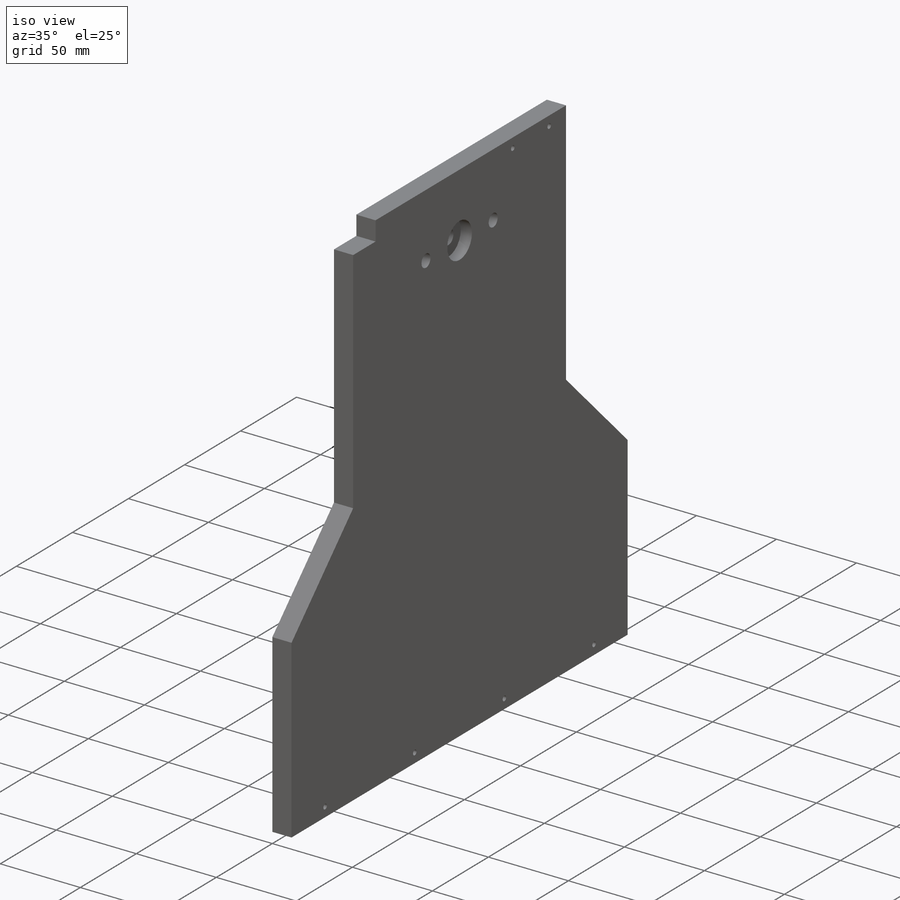
[diagram: iso view]
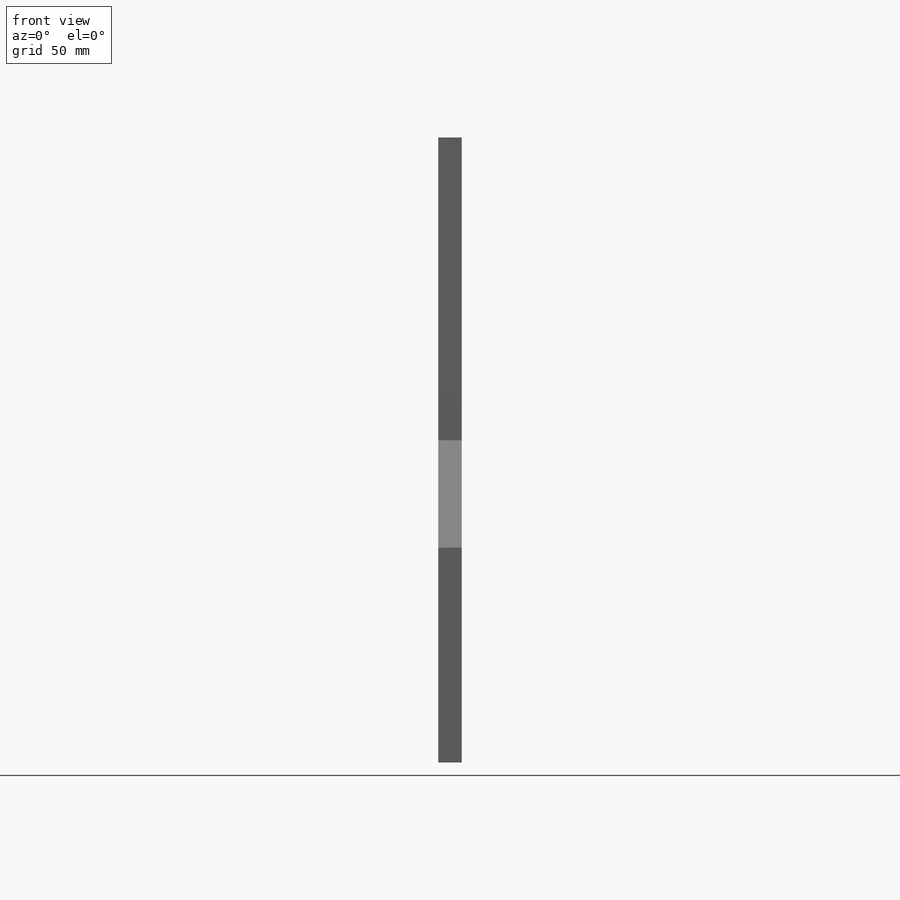
[diagram: front view]
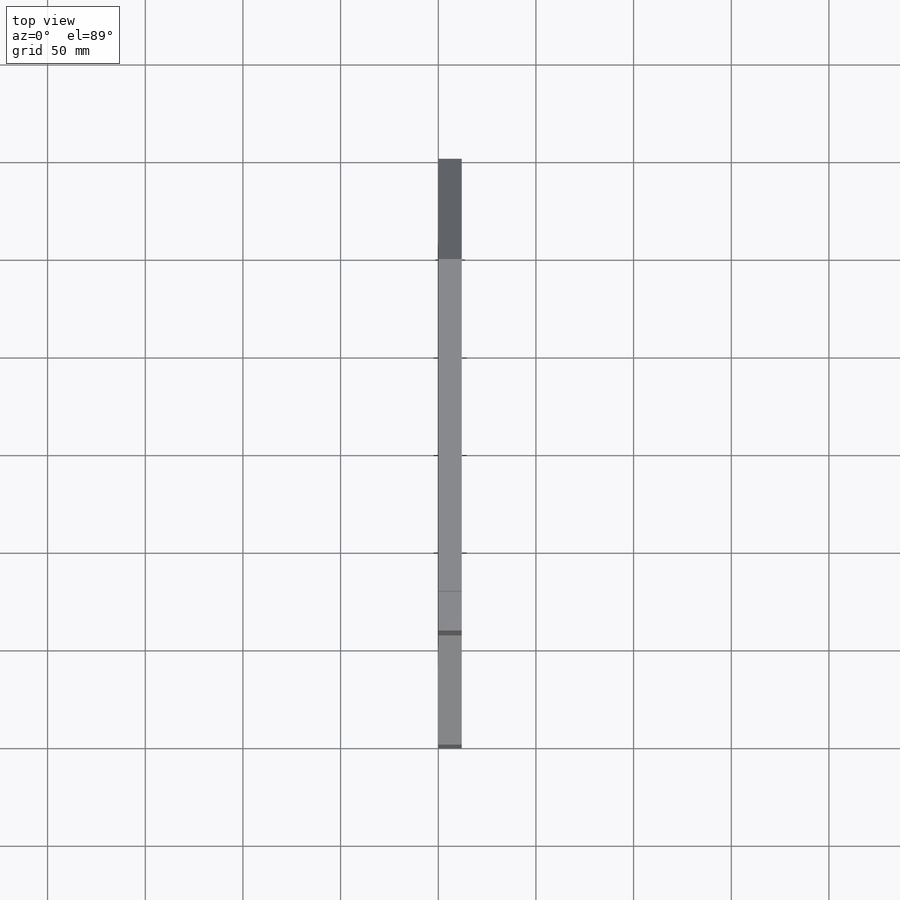
[diagram: top view]
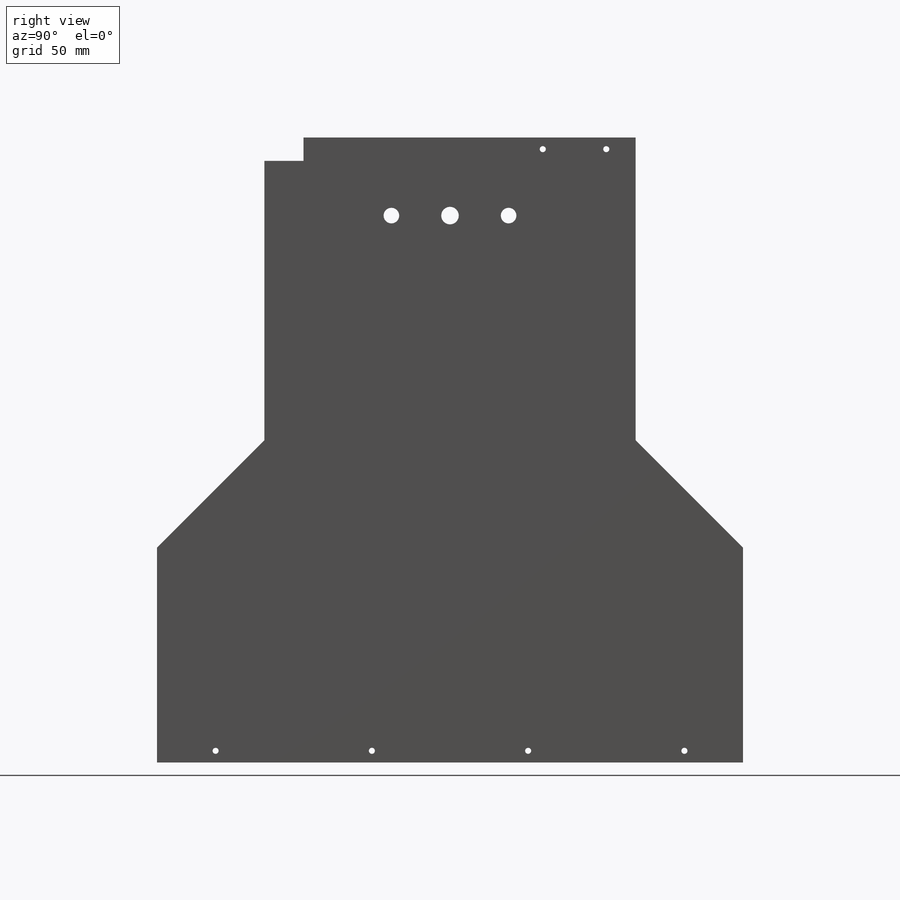
[diagram: right view]
SOLIDWORKS PART (.sldprt)
format: sldprt  version: not decoded by parser v0  size: 225,280 bytes
history: native  units: mm
features: sketch x6, cut_extrude x5, material x1, extrude x1 (+13 scaffold rows collapsed)
feature tree (26):
  scaffold x13  (default folders/planes/origin — collapsed)
  material  "Material <not specified>"
  sketch  "Sketch1"  dims[c1.D1=320.0mm c1.D2=~102.580645mm c2.D2=225.0deg c2.D3=150.0mm c2.D4=155.0mm c2.D5=80.0mm c2.D6=~108.431458mm c3.D5=110.0mm c3.D6=190.0mm]
  extrude  "Boss-Extrude1"  Depth=12mm
  sketch  "Sketch2"  dims[c1.D1=8.0mm c1.D3=8.0mm c1.D2=260.0mm c1.D4=200.0mm c1.D5=65.0mm c1.D6=65.0mm c1.280=280.0mm c2.D4=280.0mm]
  cut_extrude  "Cut-Extrude1"  [1 undecoded]
  sketch  "Sketch3"  dims[D1=9.0mm D2=280.0mm]
  cut_extrude  "Cut-Extrude2"  [1 undecoded]
  sketch  "Sketch4"  dims[D1=22.1mm]
  cut_extrude  "Cut-Extrude3"  Depth=7mm
  sketch  "Sketch5"  dims[D1=20.0mm D2=12.0mm]
  cut_extrude  "Cut-Extrude4"  [1 undecoded]
  sketch  "Sketch6"  dims[c1.D1=3.1mm c1.D2=3.1mm c1.D3=3.1mm c1.D4=3.1mm c1.D13=3.1mm c1.D14=3.1mm c1.D5=6.0mm c1.D6=6.0mm c1.D7=6.0mm c1.D8=6.0mm c1.D9=30.0mm c1.D10=30.0mm c1.D11=80.0mm c1.D12=160.0mm c2.D13=~282.854255mm c2.D15=15.0mm c2.D16=47.5mm c2.D17=6.0mm c2.D18=6.0mm]
  cut_extrude  "Cut-Extrude5"  [1 undecoded]
decode coverage: 8 of 12 modeling features carry decoded parameters
note: ~ marks probable driven/reference dimensions
note: 4 parameter values undecoded
summary: no parameter record found for 4 features
note: suppression state not decoded; provenance and decode notes live in map.json
